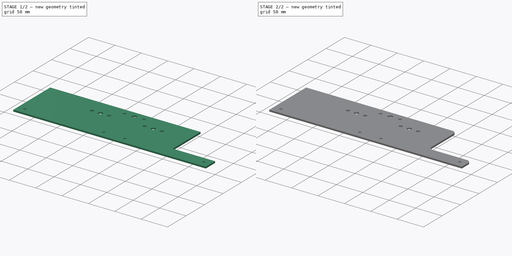
[diagram: build sequence overview — one tinted view per stage of 2, left to right]
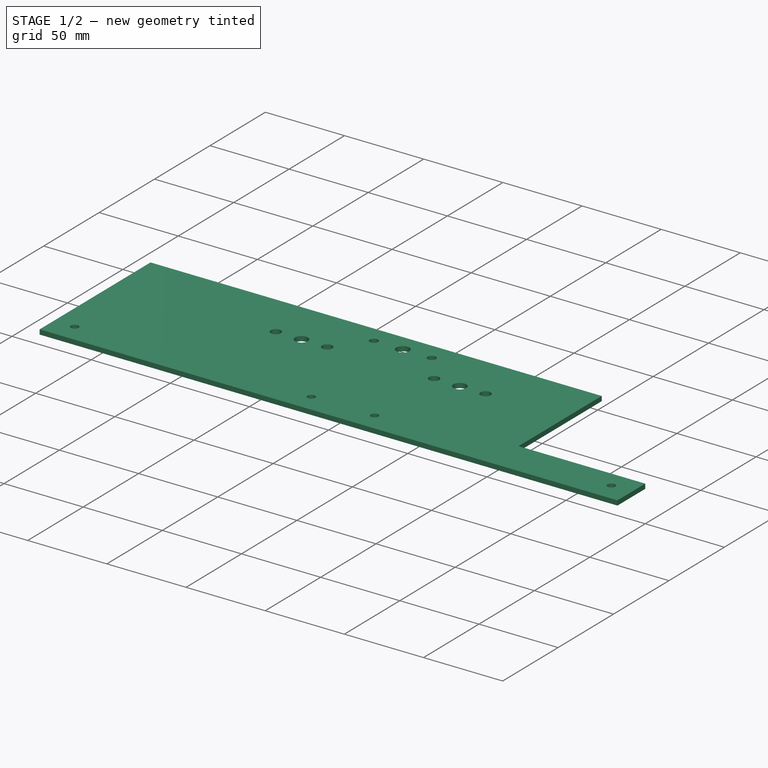
[diagram: stage 1 of 2 — iso view after this stage's code; geometry added in this stage tinted green]
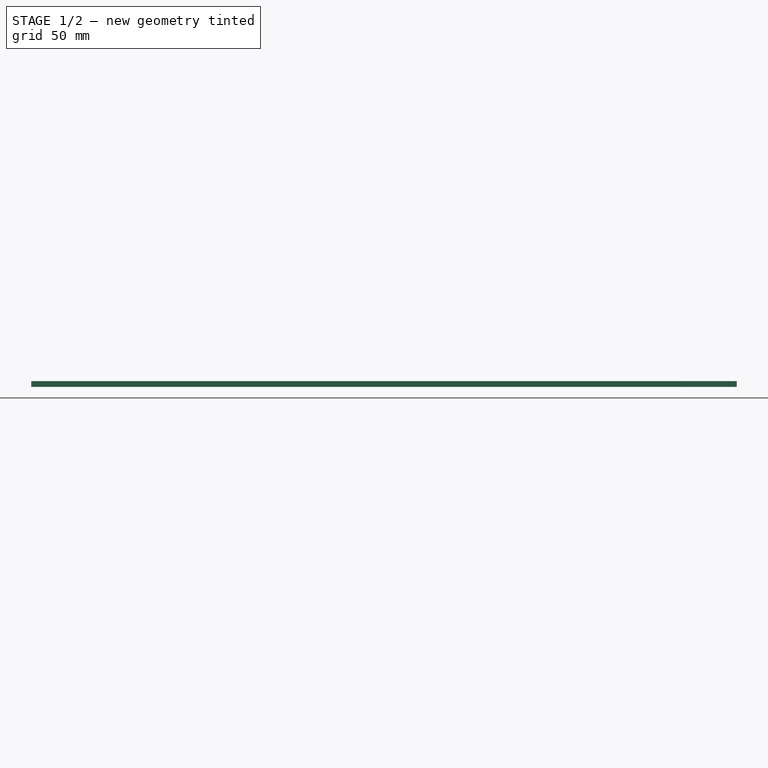
[diagram: stage 1 of 2 — front view after this stage's code; geometry added in this stage tinted green]
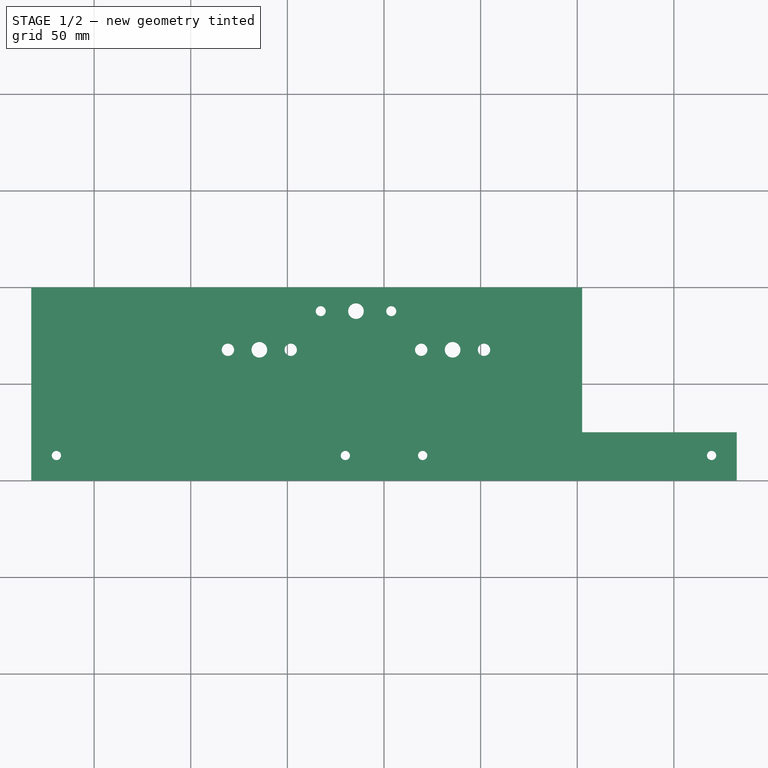
[diagram: stage 1 of 2 — top view after this stage's code; geometry added in this stage tinted green]
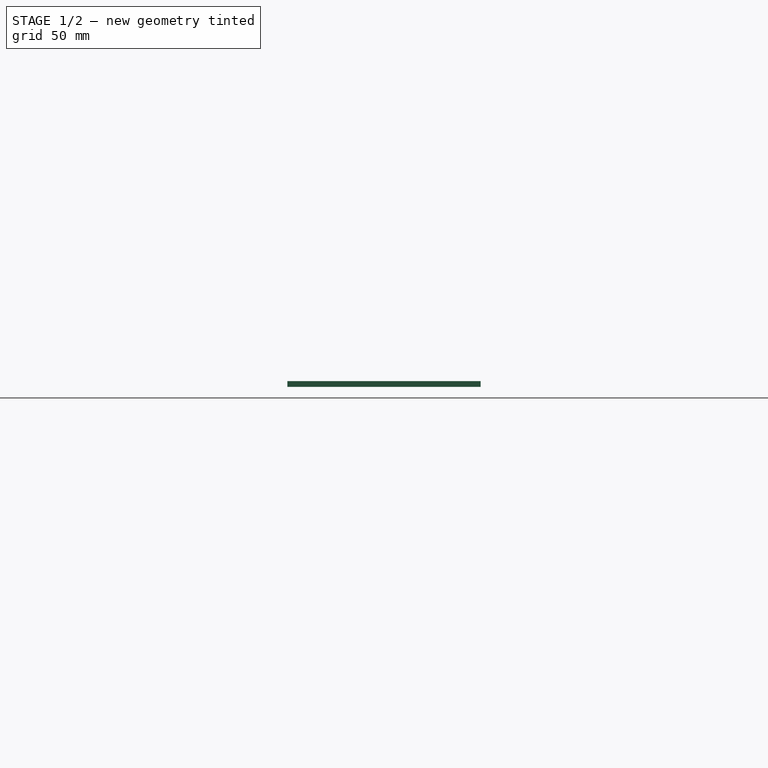
[diagram: stage 1 of 2 — right view after this stage's code; geometry added in this stage tinted green]
FCSTD DOCUMENT  (FreeCAD 0.16R6706 (Git))
Label: Mezanino
License: All rights reserved
LicenseURL: http://en.wikipedia.org/wiki/All_rights_reserved
objects: Path::FeaturePython×16, Sketcher::SketchObject×1, PartDesign::Pad×1, PartDesign::Fillet×1, Path::FeatureCompoundPython×1
note: 4 computed .brp shape members not serialized (recipe doc carries the construction recipe); baked Part::Feature solids carry a one-line shape summary decoded from their .brp

FEATURE [Sketcher::SketchObject] Sketch
  sketch-geometry (25):
    g0: LineSegment StartX=-182.5 StartY=100 StartZ=0 EndX=-182.5 EndY=0 EndZ=0
    g1: LineSegment StartX=-182.5 StartY=0 StartZ=0 EndX=182.5 EndY=0 EndZ=0
    g2: LineSegment StartX=102.5 StartY=100 StartZ=0 EndX=-182.5 EndY=100 EndZ=0
    g3: Circle CenterX=-14.5 CenterY=87.7 CenterZ=0 NormalX=0 NormalY=0 NormalZ=1 Radius=4.05
    g4: LineSegment [constr] StartX=-64.5 StartY=67.7 StartZ=0 EndX=35.5 EndY=67.7 EndZ=0
    g5: LineSegment [constr] StartX=-14.5 StartY=87.7 StartZ=0 EndX=-14.5 EndY=67.7 EndZ=0
    g6: Circle CenterX=-64.5 CenterY=67.7 CenterZ=0 NormalX=0 NormalY=0 NormalZ=1 Radius=4.05
    g7: Circle CenterX=35.5 CenterY=67.7 CenterZ=0 NormalX=0 NormalY=0 NormalZ=1 Radius=4.05
    g8: LineSegment [constr] StartX=-32.75 StartY=87.7 StartZ=0 EndX=3.75 EndY=87.7 EndZ=0
    g9: Circle CenterX=-32.75 CenterY=87.7 CenterZ=0 NormalX=0 NormalY=0 NormalZ=1 Radius=2.6
    g10: Circle CenterX=3.75 CenterY=87.7 CenterZ=0 NormalX=0 NormalY=0 NormalZ=1 Radius=2.6
    g11: LineSegment [constr] StartX=19.25 StartY=67.7 StartZ=0 EndX=51.75 EndY=67.7 EndZ=0
    g12: Circle CenterX=19.25 CenterY=67.7 CenterZ=0 NormalX=0 NormalY=0 NormalZ=1 Radius=3.2
    g13: Circle CenterX=51.75 CenterY=67.7 CenterZ=0 NormalX=0 NormalY=0 NormalZ=1 Radius=3.2
    g14: LineSegment [constr] StartX=-80.75 StartY=67.7 StartZ=0 EndX=-48.25 EndY=67.7 EndZ=0
    g15: Circle CenterX=-80.75 CenterY=67.7 CenterZ=0 NormalX=0 NormalY=0 NormalZ=1 Radius=3.2
    g16: Circle CenterX=-48.25 CenterY=67.7 CenterZ=0 NormalX=0 NormalY=0 NormalZ=1 Radius=3.2
    g17: LineSegment [constr] StartX=-169.5 StartY=13 StartZ=0 EndX=169.5 EndY=13 EndZ=0
    g18: Circle CenterX=-169.5 CenterY=13 CenterZ=0 NormalX=0 NormalY=0 NormalZ=1 Radius=2.4
    g19: Circle CenterX=169.5 CenterY=13 CenterZ=0 NormalX=0 NormalY=0 NormalZ=1 Radius=2.4
    g20: Circle CenterX=20 CenterY=13 CenterZ=0 NormalX=0 NormalY=0 NormalZ=1 Radius=2.4
    g21: Circle CenterX=-20 CenterY=13 CenterZ=0 NormalX=0 NormalY=0 NormalZ=1 Radius=2.4
    g22: LineSegment StartX=182.5 StartY=0 StartZ=0 EndX=182.5 EndY=25 EndZ=0
    g23: LineSegment StartX=182.5 StartY=25 StartZ=0 EndX=102.5 EndY=25 EndZ=0
    g24: LineSegment StartX=102.5 StartY=25 StartZ=0 EndX=102.5 EndY=100 EndZ=0
  constraints (67):
    c: Coincident(g0,g1)
    c: Vertical(g0)
    c: Horizontal(g1)
    c: Horizontal(g2)
    c: DistanceX(g1,g1) = 365
    c: Symmetric(g0,g1,g-1)
    c: DistanceX(g3,g1) = 197
    c: DistanceY(g1,g2) = 100
    c: Coincident(g2,g0)
    c: DistanceX(g4,g4) = 100
    c: Horizontal(g4)
    c: Vertical(g5)
    c: Symmetric(g4,g4,g5)
    c: DistanceY(g5,g5) = 20
    c: Coincident(g3,g5)
    c: Radius(g3) = 4.05
    c: Equal(g3,g6) = 4.3
    c: Equal(g3,g7) = 4.3
    c: Coincident(g4,g7)
    c: Coincident(g4,g6)
    c: Horizontal(g8)
    c: DistanceX(g8,g8) = 36.5
    c: Radius(g9) = 2.6
    c: Equal(g9,g10) = 2.6
    c: Coincident(g8,g10)
    c: Coincident(g9,g8)
    c: Symmetric(g8,g8,g3)
    c: Horizontal(g11)
    c: DistanceX(g11,g11) = 32.5
    c: Radius(g12) = 3.2
    c: Equal(g12,g13) = 3.2
    c: Coincident(g11,g13)
    c: Coincident(g12,g11)
    c: Horizontal(g14)
    c: Equal(g11,g14) = 32.5
    c: Equal(g12,g15) = 3.2
    c: Equal(g15,g16) = 3.2
    c: Coincident(g14,g16)
    c: Coincident(g15,g14)
    c: Symmetric(g11,g11,g4)
    c: Symmetric(g14,g14,g4)
    c: DistanceY(g1,g3) = 87.7
    c: DistanceX(g4,g1) = 147
    c: DistanceY(g-1,g11) = 67.7
    c: Horizontal(g17)
    c: Symmetric(g17,g17,g-2)
    c: DistanceY(g0,g17) = 13
    c: DistanceX(g0,g17) = 13
    c: Radius(g18) = 2.4
    c: Equal(g18,g19) = 2.4
    c: Equal(g18,g20) = 2.4
    c: Equal(g18,g21) = 2.4
    c: Coincident(g17,g18)
    c: Coincident(g17,g19)
    c: PointOnObject(g21,g17)
    c: PointOnObject(g20,g17)
    c: DistanceX(g-1,g20) = 20
    c: DistanceX(g21,g-1) = 20
    c: Coincident(g22,g23)
    c: Coincident(g23,g24)
    c: Coincident(g2,g24)
    c: Coincident(g1,g22)
    c: Vertical(g22)
    c: Vertical(g24)
    c: Horizontal(g23)
    c: DistanceX(g23,g23) = 80
    c: DistanceY(g22,g22) = 25
FEATURE [PartDesign::Pad] Pad
  Length = 3
  Length2 = 100
  Sketch = -> Sketch
  Type = 0
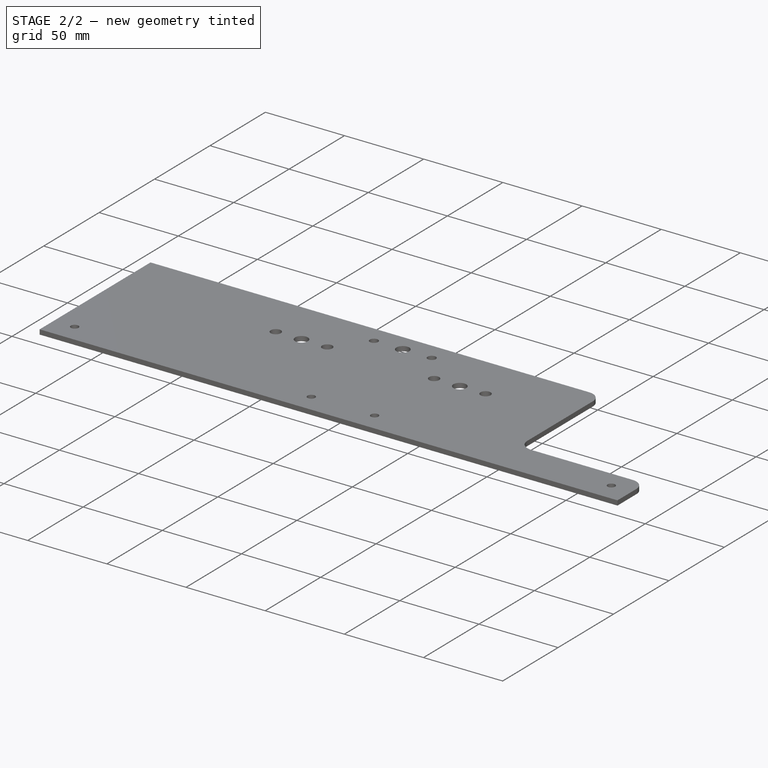
[diagram: stage 2 of 2 — iso view after this stage's code; geometry added in this stage tinted green]
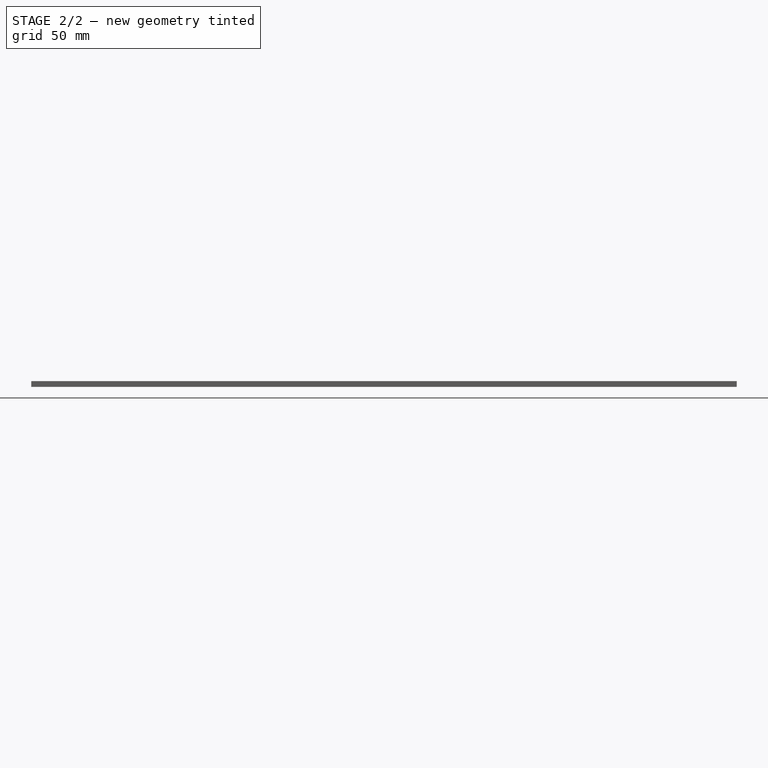
[diagram: stage 2 of 2 — front view after this stage's code; geometry added in this stage tinted green]
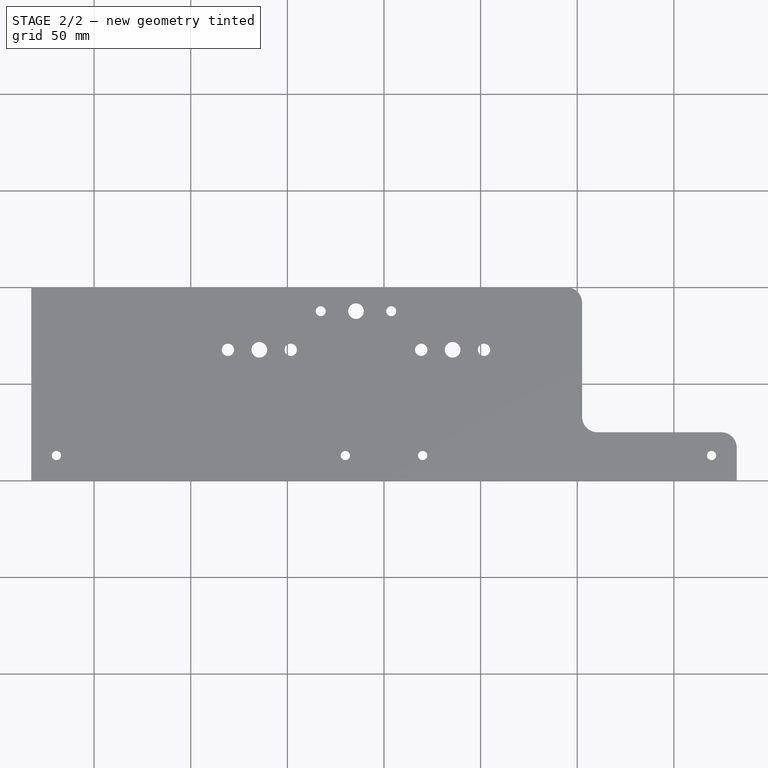
[diagram: stage 2 of 2 — top view after this stage's code; geometry added in this stage tinted green]
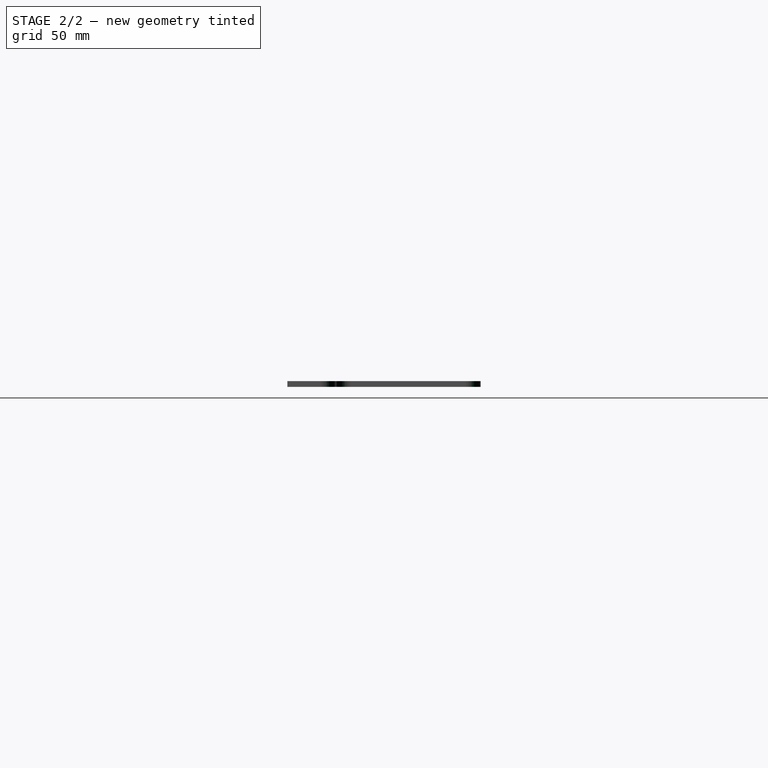
[diagram: stage 2 of 2 — right view after this stage's code; geometry added in this stage tinted green]
FEATURE [Path::FeaturePython] Machine  label="Machine_"  # Path/CAM operation (typed FeaturePython)
  MachineUnits = 0
  X = 0
  X_Max = 0
  X_Min = 0
  Y = 0
  Y_Max = 0
  Y_Min = 0
  Z = 0
  Z_Max = 0
  Z_Min = 0
FEATURE [Path::FeaturePython] Tool  label="Tool1"  # Path/CAM operation (typed FeaturePython)
  SpindleDir = 0
  SpindleSpeed = 0
  ToolNumber = 1
FEATURE [PartDesign::Fillet] Fillet
  Base = -> Pad [Edge14,Edge11,Edge8]
  Radius = 8
FEATURE [Path::FeaturePython] Profile  label="Cantoneira"  # Path/CAM operation (typed FeaturePython)
  Active = true
  Base = -> Fillet
  ClearanceHeight = 3
  Direction = 1
  Edge1 = -> Fillet [Edge25]
  EndPoint = (0,0,0)
  ExtendAtEnd = 0
  ExtendAtStart = 0
  FinalDepth = -3.1
  HorizFeed = 127
  LeadInLineLen = 0
  LeadOutLineLen = 0
  OffsetExtra = 0
  PathClosed = true
  RetractHeight = 0
  RollRadius = 0
  SegLen = 0.5
  Side = 1
  StartDepth = 0
  StartPoint = (0,0,0)
  StepDown = 2
  ToolNumber = 1
  UseEndPoint = false
  UsePlacements = false
  UseStartDepth = true
  UseStartPoint = false
  VertFeed = 127
FEATURE [Path::FeaturePython] Profile001  label="Cantoneira001"  # Path/CAM operation (typed FeaturePython)
  Active = true
  Base = -> Fillet
  ClearanceHeight = 3
  Direction = 1
  Edge1 = -> Fillet [Edge22]
  EndPoint = (0,0,0)
  ExtendAtEnd = 0
  ExtendAtStart = 0
  FinalDepth = -3.1
  HorizFeed = 127
  LeadInLineLen = 0
  LeadOutLineLen = 0
  OffsetExtra = 0
  PathClosed = true
  RetractHeight = 0
  RollRadius = 0
  SegLen = 0.5
  Side = 1
  StartDepth = 0
  StartPoint = (0,0,0)
  StepDown = 2
  ToolNumber = 1
  UseEndPoint = false
  UsePlacements = false
  UseStartDepth = true
  UseStartPoint = false
  VertFeed = 127
FEATURE [Path::FeaturePython] Profile002  label="Cantoneira002"  # Path/CAM operation (typed FeaturePython)
  Active = true
  Base = -> Fillet
  ClearanceHeight = 3
  Direction = 1
  Edge1 = -> Fillet [Edge23]
  EndPoint = (0,0,0)
  ExtendAtEnd = 0
  ExtendAtStart = 0
  FinalDepth = -3.1
  HorizFeed = 127
  LeadInLineLen = 0
  LeadOutLineLen = 0
  OffsetExtra = 0
  PathClosed = true
  RetractHeight = 0
  RollRadius = 0
  SegLen = 0.5
  Side = 1
  StartDepth = 0
  StartPoint = (0,0,0)
  StepDown = 2
  ToolNumber = 1
  UseEndPoint = false
  UsePlacements = false
  UseStartDepth = true
  UseStartPoint = false
  VertFeed = 127
FEATURE [Path::FeaturePython] Profile003  label="Cantoneira003"  # Path/CAM operation (typed FeaturePython)
  Active = true
  Base = -> Fillet
  ClearanceHeight = 3
  Direction = 1
  Edge1 = -> Fillet [Edge24]
  EndPoint = (0,0,0)
  ExtendAtEnd = 0
  ExtendAtStart = 0
  FinalDepth = -3.1
  HorizFeed = 127
  LeadInLineLen = 0
  LeadOutLineLen = 0
  OffsetExtra = 0
  PathClosed = true
  RetractHeight = 0
  RollRadius = 0
  SegLen = 0.5
  Side = 1
  StartDepth = 0
  StartPoint = (0,0,0)
  StepDown = 2
  ToolNumber = 1
  UseEndPoint = false
  UsePlacements = false
  UseStartDepth = true
  UseStartPoint = false
  VertFeed = 127
FEATURE [Path::FeaturePython] Profile004  label="Eixo"  # Path/CAM operation (typed FeaturePython)
  Active = true
  Base = -> Fillet
  ClearanceHeight = 3
  Direction = 1
  Edge1 = -> Fillet [Edge18]
  EndPoint = (0,0,0)
  ExtendAtEnd = 0
  ExtendAtStart = 0
  FinalDepth = -3.1
  HorizFeed = 127
  LeadInLineLen = 0
  LeadOutLineLen = 0
  OffsetExtra = 0
  PathClosed = true
  RetractHeight = 0
  RollRadius = 0
  SegLen = 0.5
  Side = 1
  StartDepth = 0
  StartPoint = (0,0,0)
  StepDown = 2
  ToolNumber = 1
  UseEndPoint = false
  UsePlacements = false
  UseStartDepth = true
  UseStartPoint = false
  VertFeed = 127
FEATURE [Path::FeaturePython] Profile005  label="Eixo001"  # Path/CAM operation (typed FeaturePython)
  Active = true
  Base = -> Fillet
  ClearanceHeight = 3
  Direction = 1
  Edge1 = -> Fillet [Edge13]
  EndPoint = (0,0,0)
  ExtendAtEnd = 0
  ExtendAtStart = 0
  FinalDepth = -3.1
  HorizFeed = 127
  LeadInLineLen = 0
  LeadOutLineLen = 0
  OffsetExtra = 0
  PathClosed = true
  RetractHeight = 0
  RollRadius = 0
  SegLen = 0.5
  Side = 1
  StartDepth = 0
  StartPoint = (0,0,0)
  StepDown = 2
  ToolNumber = 1
  UseEndPoint = false
  UsePlacements = false
  UseStartDepth = true
  UseStartPoint = false
  VertFeed = 127
FEATURE [Path::FeaturePython] Profile006  label="Eixo002"  # Path/CAM operation (typed FeaturePython)
  Active = true
  Base = -> Fillet
  ClearanceHeight = 3
  Direction = 1
  Edge1 = -> Fillet [Edge19]
  EndPoint = (0,0,0)
  ExtendAtEnd = 0
  ExtendAtStart = 0
  FinalDepth = -3.1
  HorizFeed = 127
  LeadInLineLen = 0
  LeadOutLineLen = 0
  OffsetExtra = 0
  PathClosed = true
  RetractHeight = 0
  RollRadius = 0
  SegLen = 0.5
  Side = 1
  StartDepth = 0
  StartPoint = (0,0,0)
  StepDown = 2
  ToolNumber = 1
  UseEndPoint = false
  UsePlacements = false
  UseStartDepth = true
  UseStartPoint = false
  VertFeed = 127
FEATURE [Path::FeaturePython] Profile007  label="Eixo003"  # Path/CAM operation (typed FeaturePython)
  Active = true
  Base = -> Fillet
  ClearanceHeight = 3
  Direction = 1
  Edge1 = -> Fillet [Edge16]
  EndPoint = (0,0,0)
  ExtendAtEnd = 0
  ExtendAtStart = 0
  FinalDepth = -3.1
  HorizFeed = 127
  LeadInLineLen = 0
  LeadOutLineLen = 0
  OffsetExtra = 0
  PathClosed = true
  RetractHeight = 0
  RollRadius = 0
  SegLen = 0.5
  Side = 1
  StartDepth = 0
  StartPoint = (0,0,0)
  StepDown = 2
  ToolNumber = 1
  UseEndPoint = false
  UsePlacements = false
  UseStartDepth = true
  UseStartPoint = false
  VertFeed = 127
FEATURE [Path::FeaturePython] Profile008  label="Eixo004"  # Path/CAM operation (typed FeaturePython)
  Active = true
  Base = -> Fillet
  ClearanceHeight = 3
  Direction = 1
  Edge1 = -> Fillet [Edge14]
  EndPoint = (0,0,0)
  ExtendAtEnd = 0
  ExtendAtStart = 0
  FinalDepth = -3.1
  HorizFeed = 127
  LeadInLineLen = 0
  LeadOutLineLen = 0
  OffsetExtra = 0
  PathClosed = true
  RetractHeight = 0
  RollRadius = 0
  SegLen = 0.5
  Side = 1
  StartDepth = 0
  StartPoint = (0,0,0)
  StepDown = 2
  ToolNumber = 1
  UseEndPoint = false
  UsePlacements = false
  UseStartDepth = true
  UseStartPoint = false
  VertFeed = 127
FEATURE [Path::FeaturePython] Profile009  label="Eixo005"  # Path/CAM operation (typed FeaturePython)
  Active = true
  Base = -> Fillet
  ClearanceHeight = 3
  Direction = 1
  Edge1 = -> Fillet [Edge17]
  EndPoint = (0,0,0)
  ExtendAtEnd = 0
  ExtendAtStart = 0
  FinalDepth = -3.1
  HorizFeed = 127
  LeadInLineLen = 0
  LeadOutLineLen = 0
  OffsetExtra = 0
  PathClosed = true
  RetractHeight = 0
  RollRadius = 0
  SegLen = 0.5
  Side = 1
  StartDepth = 0
  StartPoint = (0,0,0)
  StepDown = 2
  ToolNumber = 1
  UseEndPoint = false
  UsePlacements = false
  UseStartDepth = true
  UseStartPoint = false
  VertFeed = 127
FEATURE [Path::FeaturePython] Profile010  label="Fuso"  # Path/CAM operation (typed FeaturePython)
  Active = true
  Base = -> Fillet
  ClearanceHeight = 3
  Direction = 1
  Edge1 = -> Fillet [Edge21]
  EndPoint = (0,0,0)
  ExtendAtEnd = 0
  ExtendAtStart = 0
  FinalDepth = -3.1
  HorizFeed = 127
  LeadInLineLen = 0
  LeadOutLineLen = 0
  OffsetExtra = 0
  PathClosed = true
  RetractHeight = 0
  RollRadius = 0
  SegLen = 0.5
  Side = 1
  StartDepth = 0
  StartPoint = (0,0,0)
  StepDown = 2
  ToolNumber = 1
  UseEndPoint = false
  UsePlacements = false
  UseStartDepth = true
  UseStartPoint = false
  VertFeed = 127
FEATURE [Path::FeaturePython] Profile011  label="Fuso001"  # Path/CAM operation (typed FeaturePython)
  Active = true
  Base = -> Fillet
  ClearanceHeight = 3
  Direction = 1
  Edge1 = -> Fillet [Edge15]
  EndPoint = (0,0,0)
  ExtendAtEnd = 0
  ExtendAtStart = 0
  FinalDepth = -3.1
  HorizFeed = 127
  LeadInLineLen = 0
  LeadOutLineLen = 0
  OffsetExtra = 0
  PathClosed = true
  RetractHeight = 0
  RollRadius = 0
  SegLen = 0.5
  Side = 1
  StartDepth = 0
  StartPoint = (0,0,0)
  StepDown = 2
  ToolNumber = 1
  UseEndPoint = false
  UsePlacements = false
  UseStartDepth = true
  UseStartPoint = false
  VertFeed = 127
FEATURE [Path::FeaturePython] Profile012  label="Fuso002"  # Path/CAM operation (typed FeaturePython)
  Active = true
  Base = -> Fillet
  ClearanceHeight = 3
  Direction = 1
  Edge1 = -> Fillet [Edge20]
  EndPoint = (0,0,0)
  ExtendAtEnd = 0
  ExtendAtStart = 0
  FinalDepth = -3.1
  HorizFeed = 127
  LeadInLineLen = 0
  LeadOutLineLen = 0
  OffsetExtra = 0
  PathClosed = true
  RetractHeight = 0
  RollRadius = 0
  SegLen = 0.5
  Side = 1
  StartDepth = 0
  StartPoint = (0,0,0)
  StepDown = 2
  ToolNumber = 1
  UseEndPoint = false
  UsePlacements = false
  UseStartDepth = true
  UseStartPoint = false
  VertFeed = 127
FEATURE [Path::FeaturePython] Profile013  label="Externo"  # Path/CAM operation (typed FeaturePython)
  Active = true
  Base = -> Fillet
  ClearanceHeight = 3
  Direction = 0
  EndPoint = (0,0,0)
  ExtendAtEnd = 0
  ExtendAtStart = 0
  Face1 = -> Fillet [Face2]
  FinalDepth = -3.1
  HorizFeed = 127
  LeadInLineLen = 0
  LeadOutLineLen = 0
  OffsetExtra = 0
  PathClosed = true
  RetractHeight = 0
  RollRadius = 0
  SegLen = 0.5
  Side = 0
  StartDepth = 0
  StartPoint = (0,0,0)
  StepDown = 2
  ToolNumber = 1
  UseEndPoint = false
  UsePlacements = false
  UseStartDepth = true
  UseStartPoint = false
  VertFeed = 127
FEATURE [Path::FeatureCompoundPython] Project  # Path/CAM operation (typed FeaturePython)
  Group = -> [Machine,Tool,Profile,Profile001,Profile002,Profile003,Profile004,Profile005,Profile006,Profile007,Profile008,Profile009,Profile010,Profile011,Profile012,Profile013]
  UsePlacements = false
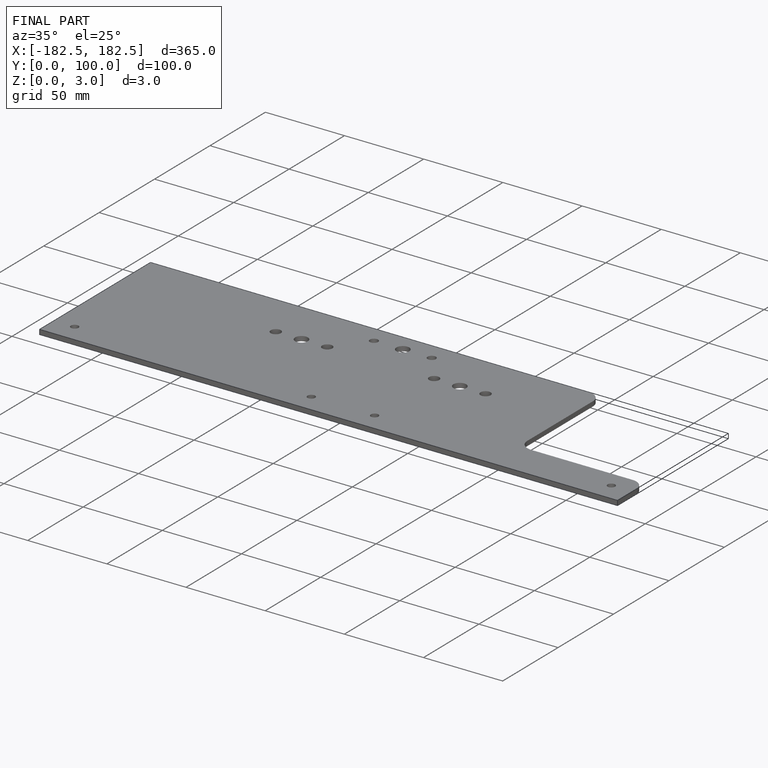
[diagram: finished part — iso view with bounding-box wireframe]
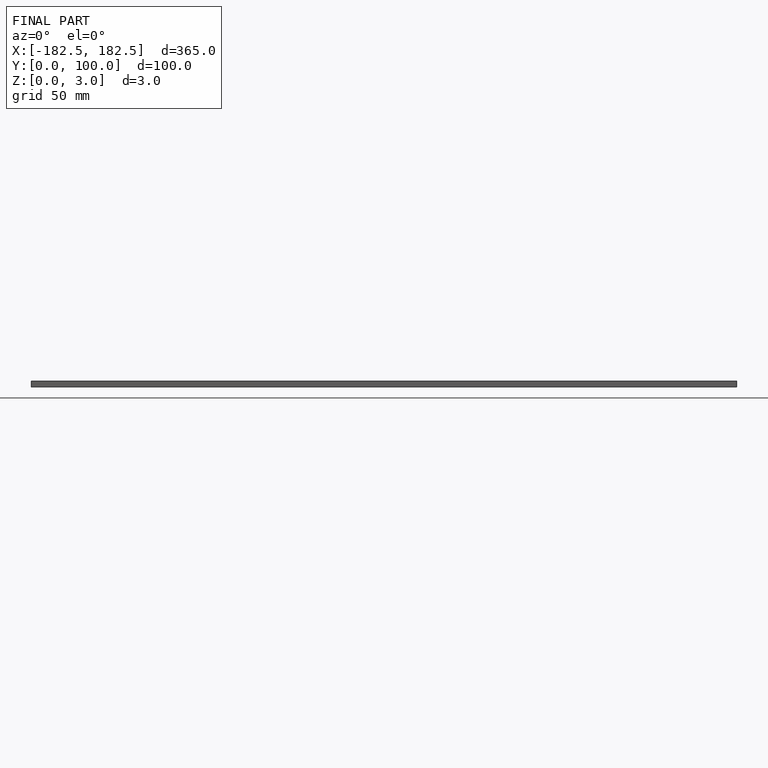
[diagram: finished part — front view with bounding-box wireframe]
